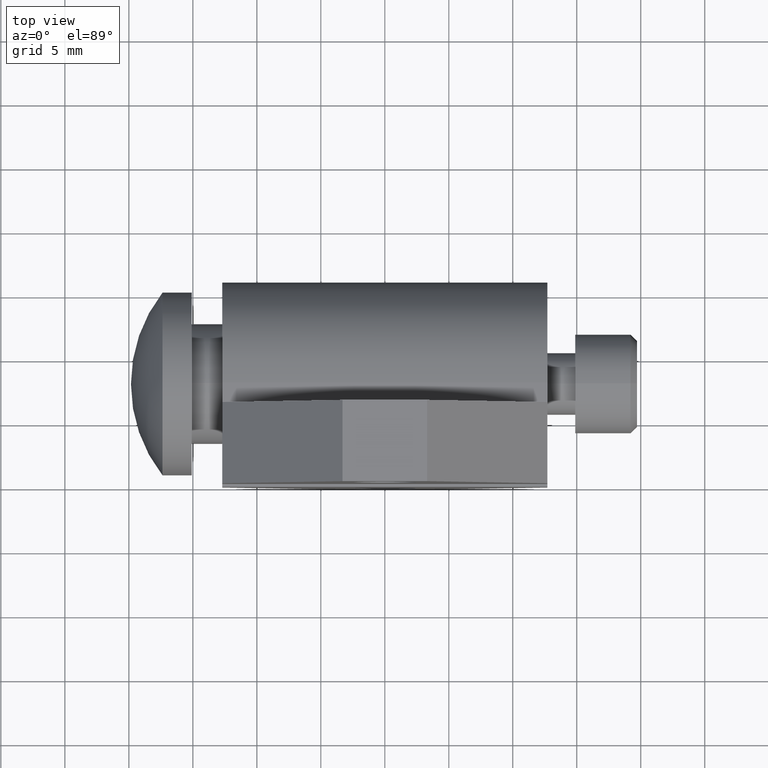
[diagram: clean part render]
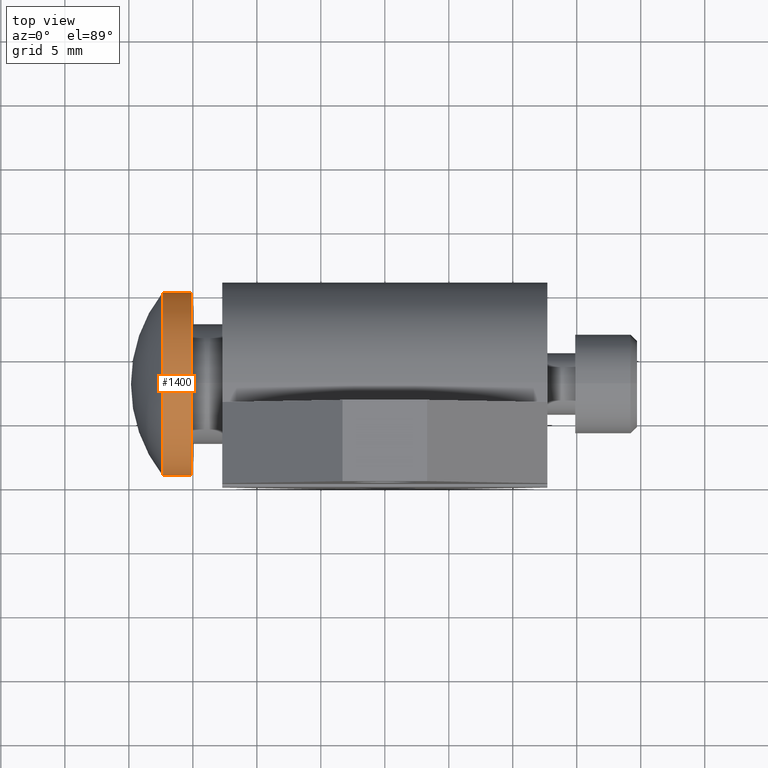
[diagram: same view with one face highlighted and labeled with its STEP entity id]
A machine part, top view. The second image highlights one B-rep face of the part: STEP entity #1400.
In plain terms, the highlighted cylindrical surface (partial cylindrical patch) has radius 7.1374 mm, axis along (1, 0, 0).
Its self-contained STEP definition (entity closure, byte-faithful):
#493=CARTESIAN_POINT('',(-5.94E-1,3.12E-1,0.E0));
#494=DIRECTION('',(1.E0,0.E0,0.E0));
#495=DIRECTION('',(0.E0,1.E0,0.E0));
#496=AXIS2_PLACEMENT_3D('',#493,#494,#495);
#501=DIRECTION('',(-1.E0,0.E0,0.E0));
#502=VECTOR('',#501,9.E-2);
#503=CARTESIAN_POINT('',(-5.94E-1,5.93E-1,0.E0));
#504=LINE('',#503,#502);
#508=DIRECTION('',(-1.E0,0.E0,0.E0));
#509=VECTOR('',#508,9.E-2);
#510=CARTESIAN_POINT('',(-5.94E-1,3.1E-2,0.E0));
#511=LINE('',#510,#509);
#547=CARTESIAN_POINT('',(-6.84E-1,3.12E-1,0.E0));
#548=DIRECTION('',(1.E0,0.E0,0.E0));
#549=DIRECTION('',(0.E0,1.E0,0.E0));
#550=AXIS2_PLACEMENT_3D('',#547,#548,#549);
#996=CARTESIAN_POINT('',(-5.94E-1,5.93E-1,0.E0));
#997=CARTESIAN_POINT('',(-6.84E-1,5.93E-1,0.E0));
#998=VERTEX_POINT('',#996);
#999=VERTEX_POINT('',#997);
#1002=CARTESIAN_POINT('',(-5.94E-1,3.1E-2,0.E0));
#1003=CARTESIAN_POINT('',(-6.84E-1,3.1E-2,0.E0));
#1004=VERTEX_POINT('',#1002);
#1005=VERTEX_POINT('',#1003);
#1386=CARTESIAN_POINT('',(-7.9035E-1,3.12E-1,0.E0));
#1387=DIRECTION('',(1.E0,0.E0,0.E0));
#1388=DIRECTION('',(0.E0,-1.E0,0.E0));
#1389=AXIS2_PLACEMENT_3D('',#1386,#1387,#1388);
#1390=CYLINDRICAL_SURFACE('',#1389,2.81E-1);
#1392=ORIENTED_EDGE('',*,*,#1391,.F.);
#1393=ORIENTED_EDGE('',*,*,#1374,.T.);
#1395=ORIENTED_EDGE('',*,*,#1394,.T.);
#1397=ORIENTED_EDGE('',*,*,#1396,.F.);
#1398=EDGE_LOOP('',(#1392,#1393,#1395,#1397));
#1399=FACE_OUTER_BOUND('',#1398,.F.);
#1400=ADVANCED_FACE('',(#1399),#1390,.T.);
#497=CIRCLE('',#496,2.81E-1);
#551=CIRCLE('',#550,2.81E-1);
#1374=EDGE_CURVE('',#998,#1004,#497,.T.);
#1391=EDGE_CURVE('',#998,#999,#504,.T.);
#1394=EDGE_CURVE('',#1004,#1005,#511,.T.);
#1396=EDGE_CURVE('',#999,#1005,#551,.T.);